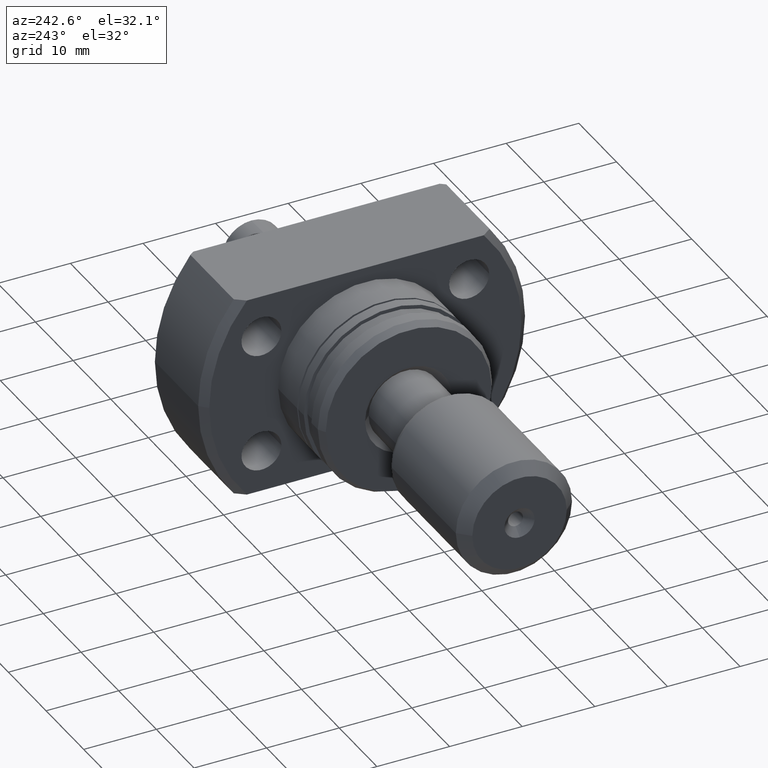
[diagram: clean part render]
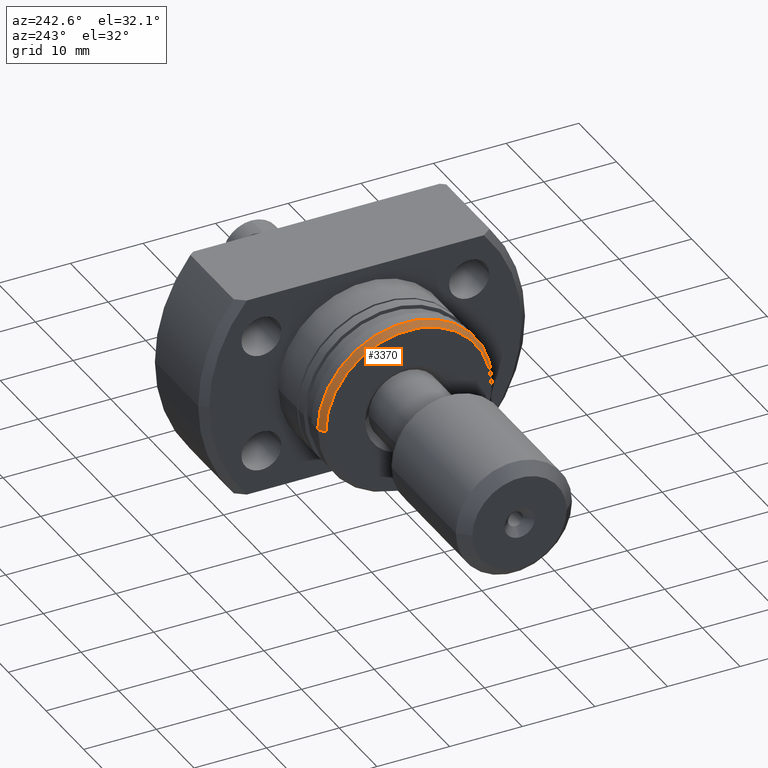
[diagram: same view with one face highlighted and labeled with its STEP entity id]
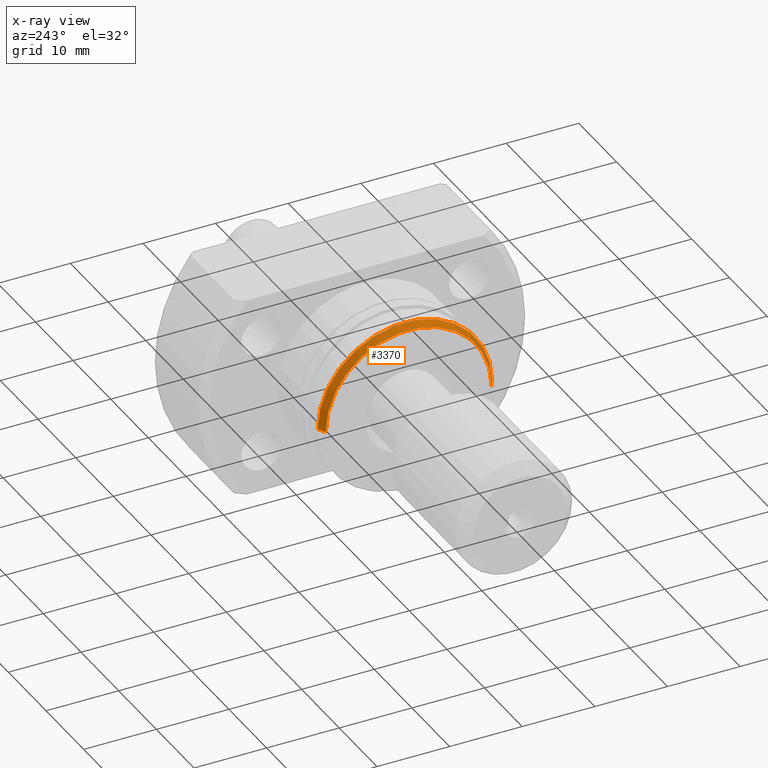
[diagram: x-ray of the same camera — body ghosted, the highlighted face saturated]
A machine part, auxiliary view. The second image highlights one B-rep face of the part: STEP entity #3370.
The next image is the same camera in x-ray: the body ghosted, the highlighted face saturated — about 0% of this face is hidden behind the body in this view.
In plain terms, the highlighted conical surface has half-angle 30 deg.
Its self-contained STEP definition (entity closure, byte-faithful):
#19 = DIRECTION ( 'NONE',  ( -4.998558363877804092E-19, 1.000000000000000000, 0.000000000000000000 ) ) ;
#226 = DIRECTION ( 'NONE',  ( 0.8660254037843919672, -0.5000000000000808242, 6.123233995737755810E-17 ) ) ;
#392 = DIRECTION ( 'NONE',  ( 1.000000000000000000, 4.998558363877804092E-19, -0.000000000000000000 ) ) ;
#456 = VERTEX_POINT ( 'NONE', #1134 ) ;
#540 = VERTEX_POINT ( 'NONE', #1176 ) ;
#629 = ORIENTED_EDGE ( 'NONE', *, *, #1314, .T. ) ;
#669 = CARTESIAN_POINT ( 'NONE',  ( -5.709678134958873413E-18, 11.42264973081037205, 0.000000000000000000 ) ) ;
#683 = CIRCLE ( 'NONE', #1217, 11.99999999999999645 ) ;
#716 = CARTESIAN_POINT ( 'NONE',  ( 0.000000000000000000, 0.000000000000000000, 0.000000000000000000 ) ) ;
#792 = AXIS2_PLACEMENT_3D ( 'NONE', #3049, #3363, #19 ) ;
#795 = CONICAL_SURFACE ( 'NONE', #1282, 11.42264973081037205, 0.5235987755983921854 ) ;
#911 = EDGE_CURVE ( 'NONE', #1993, #1142, #1130, .T. ) ;
#918 = VECTOR ( 'NONE', #3384, 1000.000000000000000 ) ;
#1130 = LINE ( 'NONE', #2256, #918 ) ;
#1134 = CARTESIAN_POINT ( 'NONE',  ( 5.709678134958873413E-18, -11.42264973081037205, 1.434223651019326615E-15 ) ) ;
#1142 = VERTEX_POINT ( 'NONE', #2983 ) ;
#1173 = DIRECTION ( 'NONE',  ( 1.000000000000000000, 4.998558363877804092E-19, -0.000000000000000000 ) ) ;
#1176 = CARTESIAN_POINT ( 'NONE',  ( 0.9999999999997822853, -11.99999999999999645, 1.469576158976823356E-15 ) ) ;
#1213 = ORIENTED_EDGE ( 'NONE', *, *, #911, .F. ) ;
#1217 = AXIS2_PLACEMENT_3D ( 'NONE', #1523, #1173, #2639 ) ;
#1282 = AXIS2_PLACEMENT_3D ( 'NONE', #716, #392, #2106 ) ;
#1314 = EDGE_CURVE ( 'NONE', #1993, #456, #2095, .T. ) ;
#1340 = ORIENTED_EDGE ( 'NONE', *, *, #1406, .F. ) ;
#1362 = CARTESIAN_POINT ( 'NONE',  ( 5.709678134958873413E-18, -11.42264973081037205, 1.398871143061829676E-15 ) ) ;
#1406 = EDGE_CURVE ( 'NONE', #1142, #540, #683, .T. ) ;
#1523 = CARTESIAN_POINT ( 'NONE',  ( 0.9999999999997822853, 4.998558363876719794E-19, 0.000000000000000000 ) ) ;
#1618 = LINE ( 'NONE', #1362, #3518 ) ;
#1849 = EDGE_CURVE ( 'NONE', #456, #540, #1618, .T. ) ;
#1993 = VERTEX_POINT ( 'NONE', #669 ) ;
#2095 = CIRCLE ( 'NONE', #792, 11.42264973081037205 ) ;
#2106 = DIRECTION ( 'NONE',  ( -4.998558363877804092E-19, 1.000000000000000000, 0.000000000000000000 ) ) ;
#2256 = CARTESIAN_POINT ( 'NONE',  ( -5.709678134958873413E-18, 11.42264973081037205, 0.000000000000000000 ) ) ;
#2283 = EDGE_LOOP ( 'NONE', ( #629, #3448, #1340, #1213 ) ) ;
#2639 = DIRECTION ( 'NONE',  ( 0.000000000000000000, 1.000000000000000000, 0.000000000000000000 ) ) ;
#2983 = CARTESIAN_POINT ( 'NONE',  ( 0.9999999999997822853, 11.99999999999999645, 0.000000000000000000 ) ) ;
#3049 = CARTESIAN_POINT ( 'NONE',  ( 0.000000000000000000, 0.000000000000000000, 0.000000000000000000 ) ) ;
#3245 = FACE_OUTER_BOUND ( 'NONE', #2283, .T. ) ;
#3363 = DIRECTION ( 'NONE',  ( 1.000000000000000000, 4.998558363877804092E-19, -0.000000000000000000 ) ) ;
#3370 = ADVANCED_FACE ( 'NONE', ( #3245 ), #795, .T. ) ;
#3384 = DIRECTION ( 'NONE',  ( 0.8660254037843919672, 0.5000000000000808242, 0.000000000000000000 ) ) ;
#3448 = ORIENTED_EDGE ( 'NONE', *, *, #1849, .T. ) ;
#3518 = VECTOR ( 'NONE', #226, 1000.000000000000000 ) ;